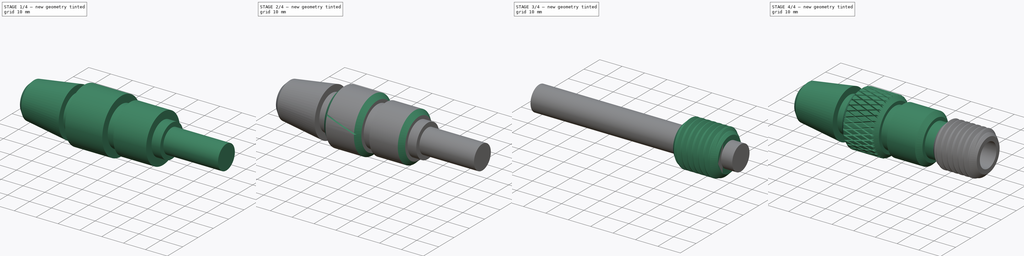
[diagram: build sequence overview — one tinted view per stage of 4, left to right]
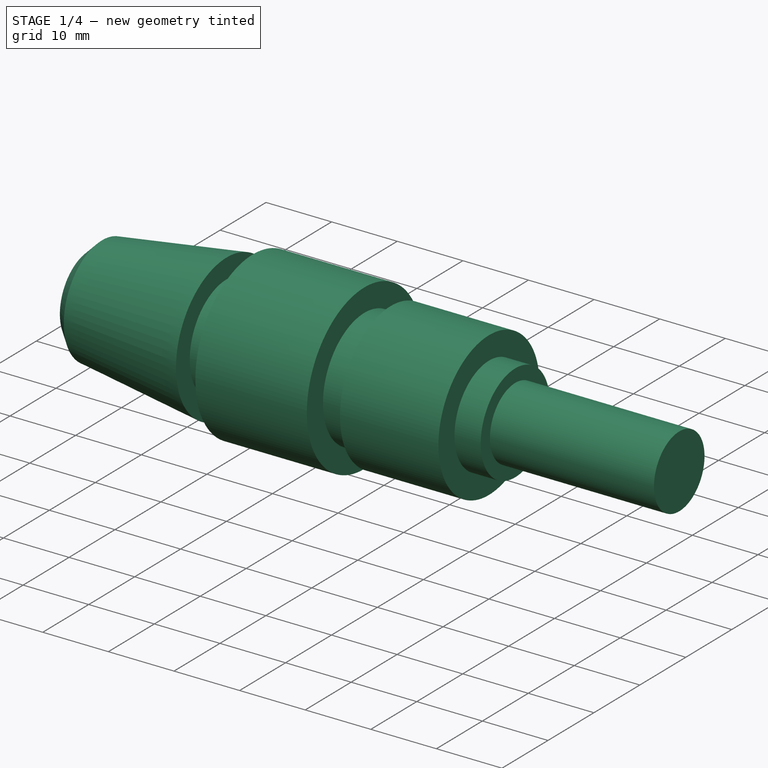
[diagram: stage 1 of 4 — iso view after this stage's code; geometry added in this stage tinted green]
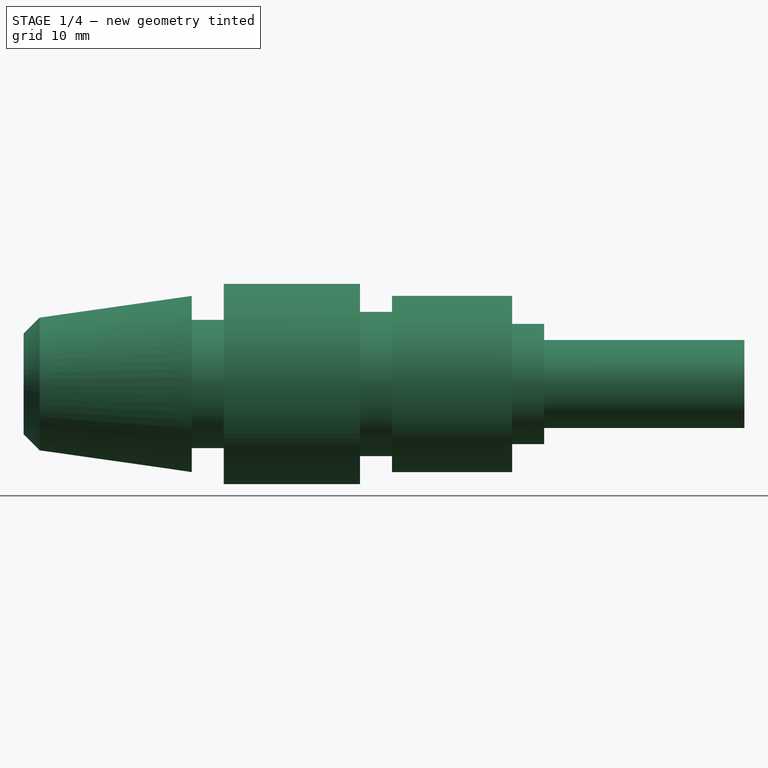
[diagram: stage 1 of 4 — front view after this stage's code; geometry added in this stage tinted green]
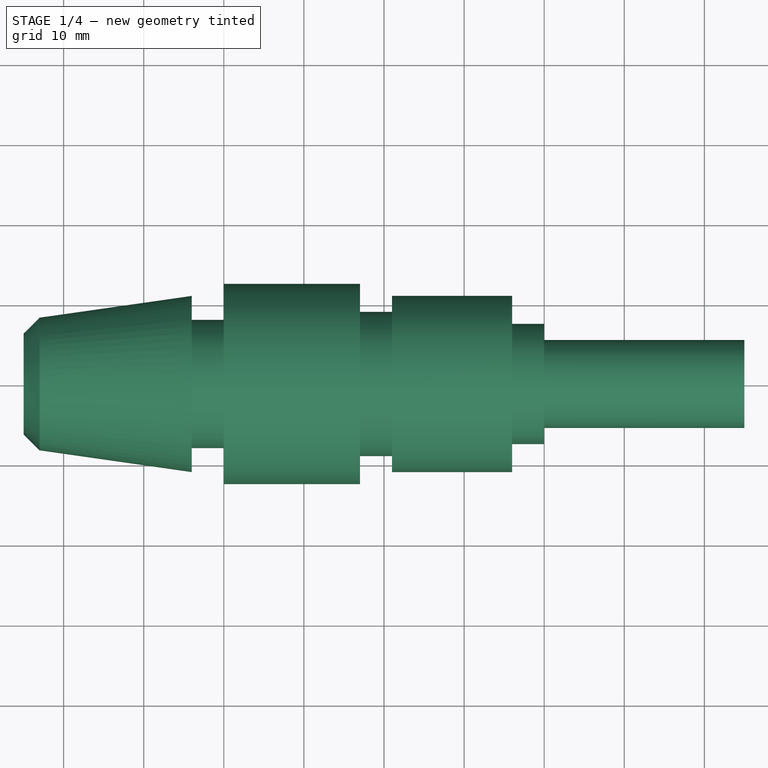
[diagram: stage 1 of 4 — top view after this stage's code; geometry added in this stage tinted green]
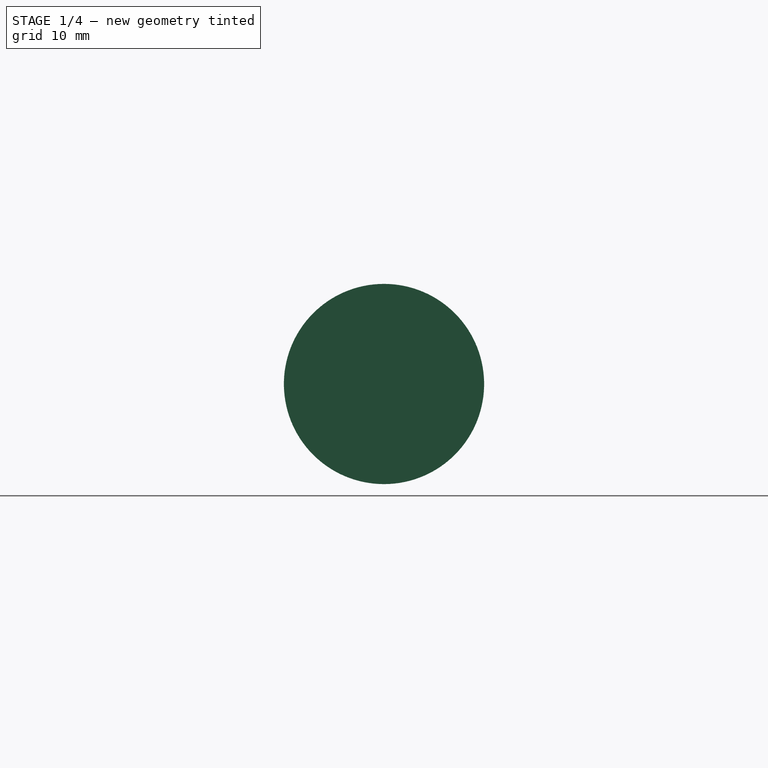
[diagram: stage 1 of 4 — right view after this stage's code; geometry added in this stage tinted green]
FCSTD DOCUMENT  (FreeCAD 1.0R39319 (Git))
Label: Unnamed
License: All rights reserved
LicenseURL: https://en.wikipedia.org/wiki/All_rights_reserved
objects: Sketcher::SketchObject×2, PartDesign::SubtractiveHelix×2, PartDesign::Revolution×1, PartDesign::Plane×1, PartDesign::Chamfer×1, PartDesign::PolarPattern×1, PartDesign::Body×1, Part::FeaturePython×1, Part::MultiFuse×1, Part::Cylinder×1, Part::Cut×1
note: 24 computed .brp shape members not serialized (recipe doc carries the construction recipe); baked Part::Feature solids carry a one-line shape summary decoded from their .brp

FEATURE [Sketcher::SketchObject] Sketch
  ArcFitTolerance = 1e-06
  AttachmentSupport = -> [XZ_Plane]
  FullyConstrained = true
  MakeInternals = false
  MapMode = 5
  Placement = pos=(0,0,0) rot=(1,0,0;1.5708rad)
  sketch-geometry (15):
    g0: LineSegment StartX=-65 StartY=0 StartZ=0 EndX=-65 EndY=6.285 EndZ=0
    g1: LineSegment StartX=-65 StartY=6.285 StartZ=0 EndX=-63 EndY=8.285 EndZ=0
    g2: LineSegment StartX=-63 StartY=8.285 StartZ=0 EndX=-44 EndY=11 EndZ=0
    g3: LineSegment StartX=-44 StartY=8 StartZ=0 EndX=-40 EndY=8 EndZ=0
    g4: LineSegment StartX=-40 StartY=8 StartZ=0 EndX=-40 EndY=12.5 EndZ=0
    g5: LineSegment StartX=-40 StartY=12.5 StartZ=0 EndX=-23 EndY=12.5 EndZ=0
    g6: LineSegment StartX=-23 StartY=12.5 StartZ=0 EndX=-23 EndY=9 EndZ=0
    g7: LineSegment StartX=-23 StartY=9 StartZ=0 EndX=-19 EndY=9 EndZ=0
    g8: LineSegment StartX=-19 StartY=9 StartZ=0 EndX=-19 EndY=11 EndZ=0
    g9: LineSegment StartX=-19 StartY=11 StartZ=0 EndX=-4 EndY=11 EndZ=0
    g10: LineSegment StartX=-4 StartY=11 StartZ=0 EndX=-4 EndY=7.5 EndZ=0
    g11: LineSegment StartX=0 StartY=0 StartZ=0 EndX=-65 EndY=0 EndZ=0
    g12: LineSegment StartX=-44 StartY=11 StartZ=0 EndX=-44 EndY=8 EndZ=0
    g13: LineSegment StartX=-4 StartY=7.5 StartZ=0 EndX=0 EndY=7.5 EndZ=0
    g14: LineSegment StartX=0 StartY=0 StartZ=0 EndX=0 EndY=7.5 EndZ=0
  constraints (44):
    c: Vertical(g0)
    c: Coincident(g0,g1)
    c: Coincident(g1,g2)
    c: Horizontal(g3)
    c: Coincident(g3,g4)
    c: Coincident(g4,g5)
    c: Horizontal(g5)
    c: Coincident(g5,g6)
    c: Coincident(g6,g7)
    c: Coincident(g7,g8)
    c: Coincident(g8,g9)
    c: Horizontal(g9)
    c: Coincident(g9,g10)
    c: Coincident(g0,g11)
    c: DistanceX(g0,g1) = 2
    c: Angle(g1,g0) = 0.785398
    c: Vertical(g4)
    c: Vertical(g6)
    c: Vertical(g8)
    c: Horizontal(g7)
    c: Vertical(g10)
    c: DistanceX(g3,g3) = 4
    c: DistanceX(g5,g5) = 17
    c: Distance(g11,g5) = 12.5
    c: DistanceX(g7,g7) = 4
    c: DistanceX(g9,g9) = 15
    c: PointOnObject(g0,g-1)
    c: Coincident(g12,g2)
    c: Vertical(g12)
    c: Coincident(g3,g12)
    c: DistanceY(g-1,g2) = 11
    c: Distance(g0,g12) = 21
    c: Distance(g11,g3) = 8
    c: Distance(g11,g7) = 9
    c: Distance(g11,g9) = 11
    c: Distance(g13) = 4
    c: Horizontal(g13)
    c: Coincident(g13,g10)
    c: Coincident(g11,g-1)
    c: Vertical(g14)
    c: Coincident(g14,g13)
    c: Coincident(g14,g11)
    c: DistanceY(g-1,g1) = 8.285
    c: Distance(g11,g13) = 7.5
FEATURE [PartDesign::Revolution] Revolution
  Angle = 360
  Angle2 = 60
  Axis = (1,0,0)
  Base = (0,0,0)
  Placement = pos=(0,0,0) rot=(1,0,0;1.5708rad)
  Profile = -> Sketch
  ReferenceAxis = -> X_Axis
  Refine = true
  Suppressed = false
  Type = 0
FEATURE [Part::Cylinder] Cylinder
  Angle = 360
  AttacherType = Attacher::AttachEngine3D
  AttachmentSupport = -> [Fusion]
  FirstAngle = 0
  Height = 90
  MapMode = 5
  Placement = pos=(-65,0,0) rot=(0.57735,0.57735,0.57735;2.0944rad)
  Radius = 5.5
  SecondAngle = 0
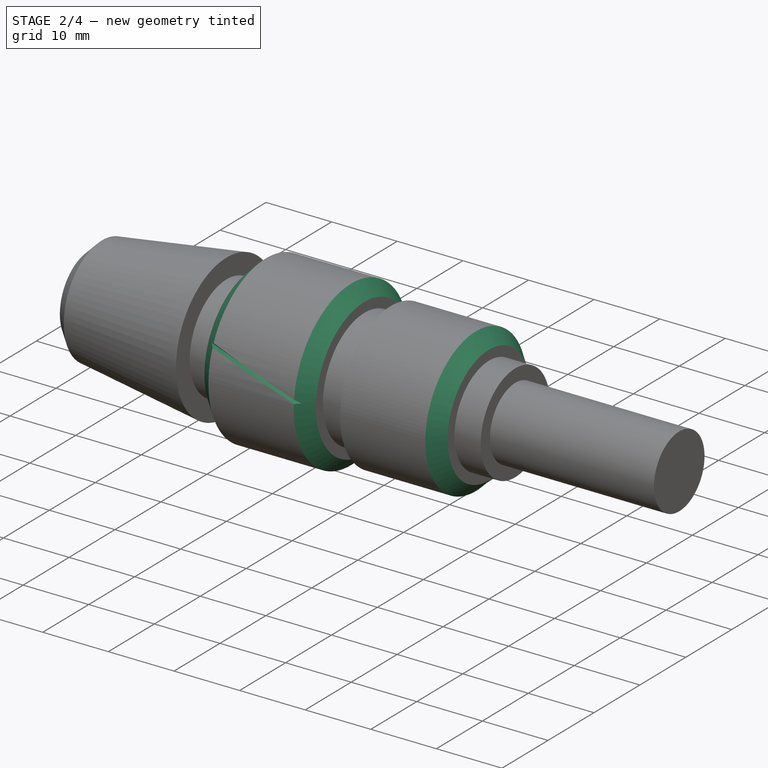
[diagram: stage 2 of 4 — iso view after this stage's code; geometry added in this stage tinted green]
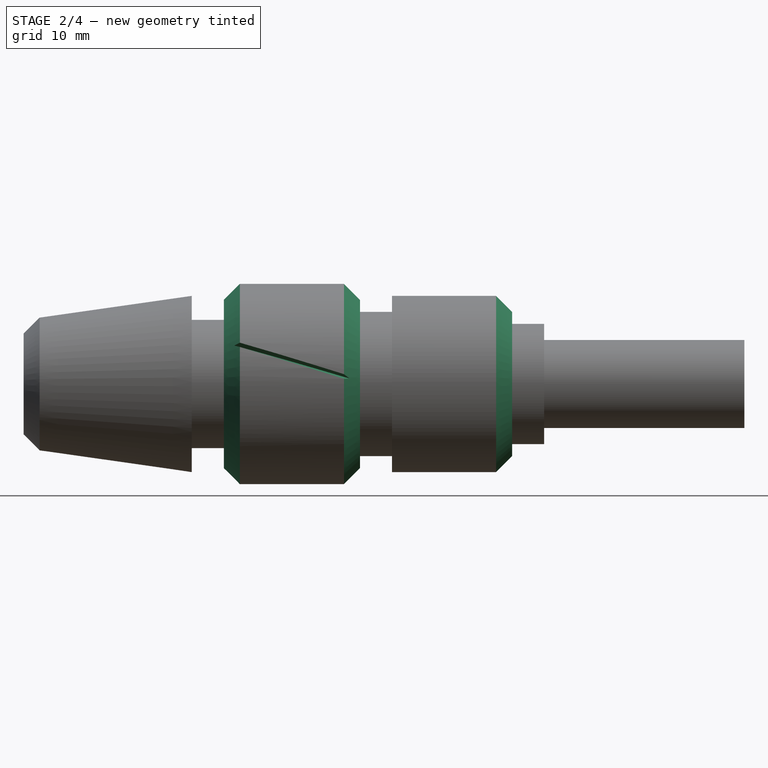
[diagram: stage 2 of 4 — front view after this stage's code; geometry added in this stage tinted green]
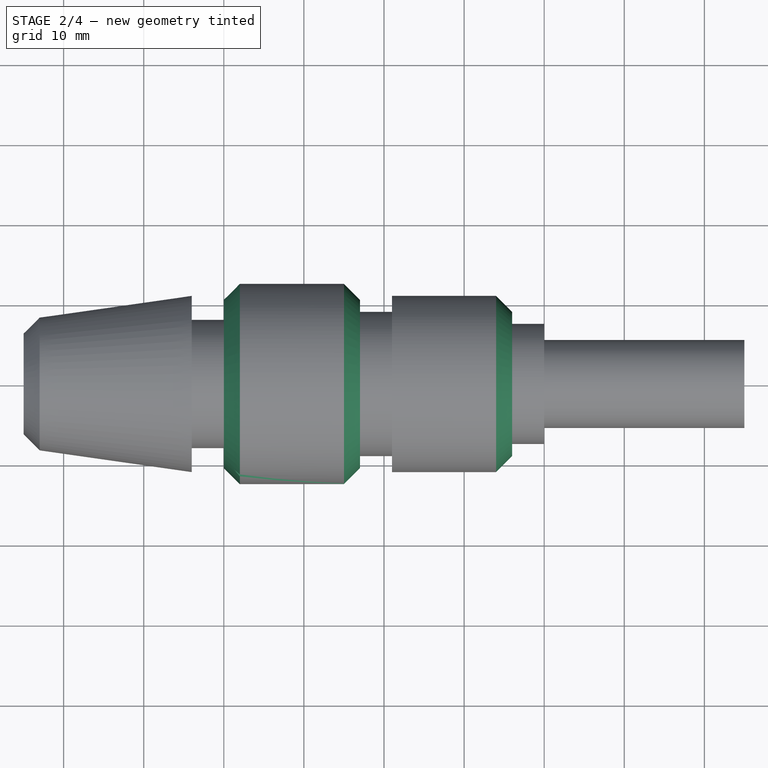
[diagram: stage 2 of 4 — top view after this stage's code; geometry added in this stage tinted green]
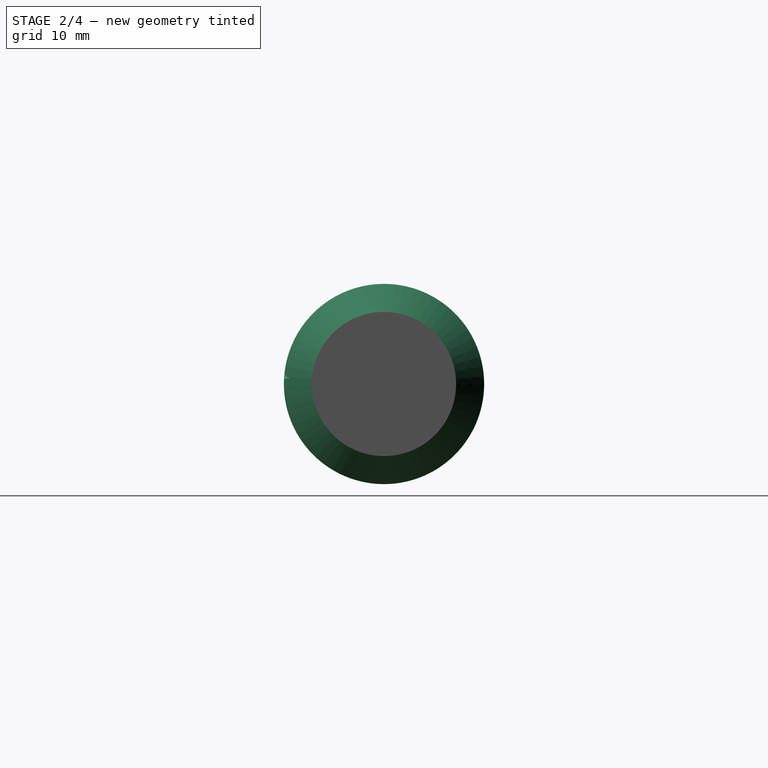
[diagram: stage 2 of 4 — right view after this stage's code; geometry added in this stage tinted green]
FEATURE [PartDesign::Plane] DatumPlane
  AttachmentSupport = -> [Revolution]
  Length = 60
  MapMode = 5
  Placement = pos=(0,0,0) rot=(0.707107,0,0.707107;3.14159rad)
  ResizeMode = 0
  Width = 60
FEATURE [Sketcher::SketchObject] Sketch001
  ArcFitTolerance = 1e-06
  AttachmentOffset = pos=(0,0,-22) rot=(0,0,1;0rad)
  AttachmentSupport = -> [Revolution]
  FullyConstrained = false
  MakeInternals = false
  MapMode = 5
  Placement = pos=(-22,0,4.9e-15) rot=(0.707107,0,0.707107;3.14159rad)
  sketch-geometry (3):
    g0: LineSegment StartX=-0.828427 StartY=13.7951 StartZ=0 EndX=0 EndY=11.7951 EndZ=0
    g1: LineSegment StartX=0 StartY=11.7951 StartZ=0 EndX=0.828427 EndY=13.7951 EndZ=0
    g2: ArcOfCircle CenterX=-1.26e-14 CenterY=0 CenterZ=0 NormalX=0 NormalY=0 NormalZ=1 AngleXU=0 Radius=13.82 StartAngle=1.51082 EndAngle=1.63078
  constraints (8):
    c: Coincident(g0,g1)
    c: Symmetric(g0,g1,g-2)
    c: Angle(g1,g0) = 0.785398
    c: Coincident(g2,g0)
    c: Coincident(g2,g1)
    c: Radius(g2) = 13.82
    c: DistanceY(g0,g1) = 2
    c: Coincident(g2,g-1)
FEATURE [PartDesign::Chamfer] Chamfer
  Angle = 45
  Base = -> Revolution [Edge16,Edge10,Edge9]
  BaseFeature = -> Revolution
  ChamferType = 0
  FlipDirection = false
  Placement = pos=(0,0,0) rot=(1,0,0;1.5708rad)
  Refine = true
  Size = 2
  Size2 = 1
  SupportTransform = false
  Suppressed = false
  UseAllEdges = false
FEATURE [PartDesign::SubtractiveHelix] SubtractiveHelix
  Angle = 0
  Axis = (1,0,0)
  Base = (0,0,0)
  BaseFeature = -> Chamfer
  Growth = 0
  HasBeenEdited = true
  Height = 20
  LeftHanded = false
  Mode = 0
  Outside = false
  Pitch = 250
  Placement = pos=(0,0,0) rot=(1,0,0;1.5708rad)
  Profile = -> Sketch001
  ReferenceAxis = -> X_Axis
  Refine = true
  Reversed = true
  Suppressed = false
  Tolerance = 0.1
  Turns = 0.08
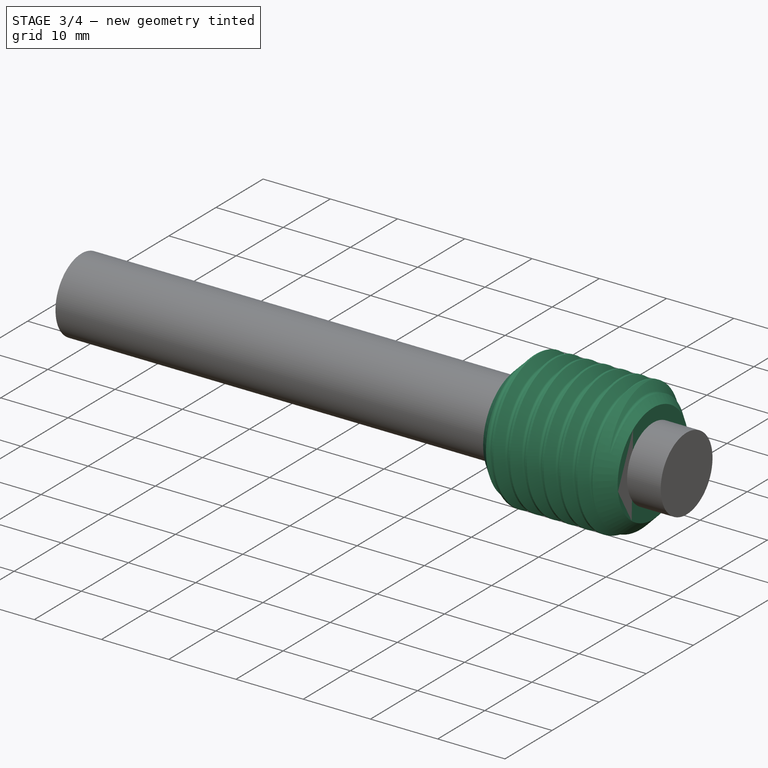
[diagram: stage 3 of 4 — iso view after this stage's code; geometry added in this stage tinted green]
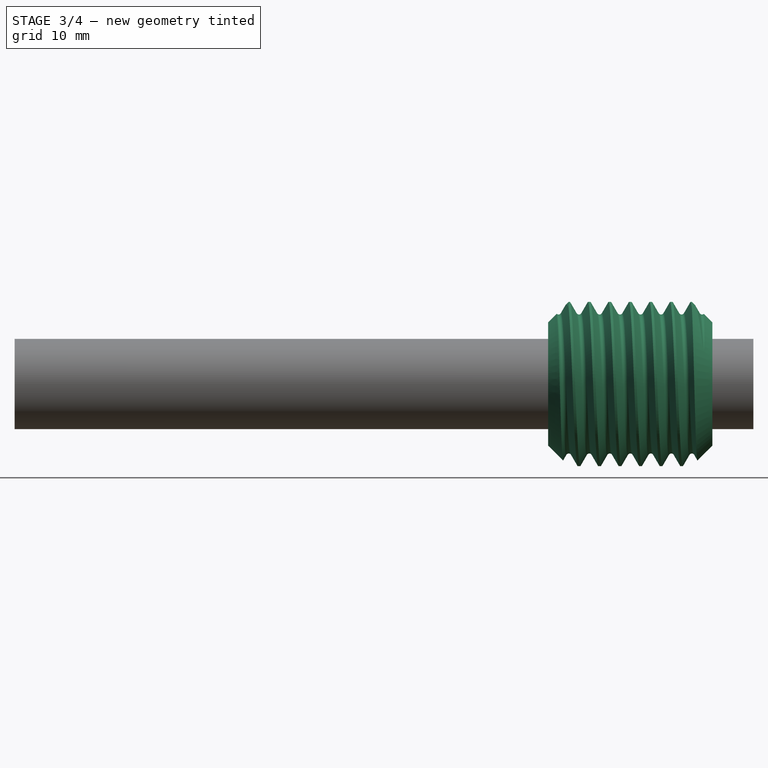
[diagram: stage 3 of 4 — front view after this stage's code; geometry added in this stage tinted green]
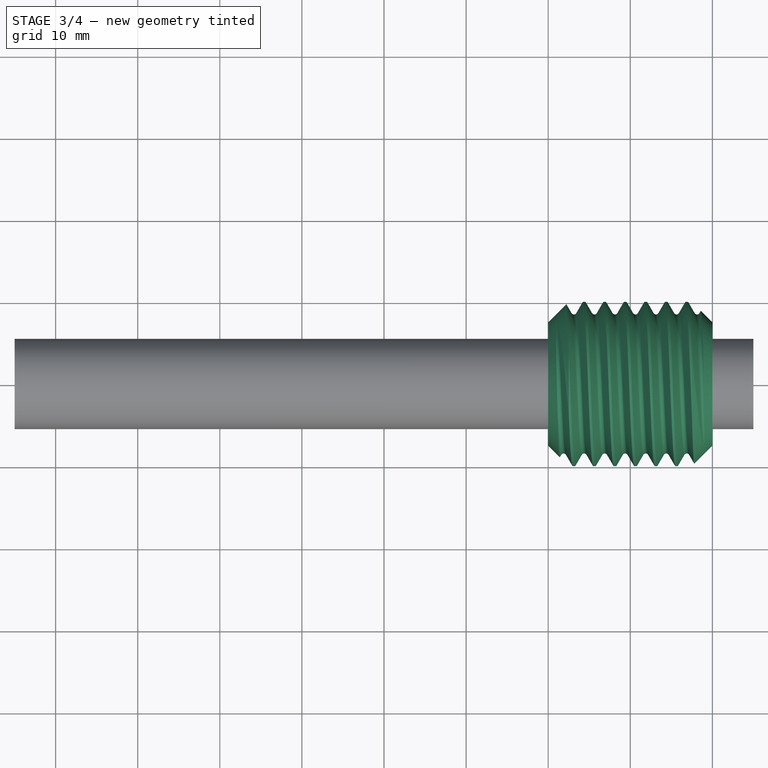
[diagram: stage 3 of 4 — top view after this stage's code; geometry added in this stage tinted green]
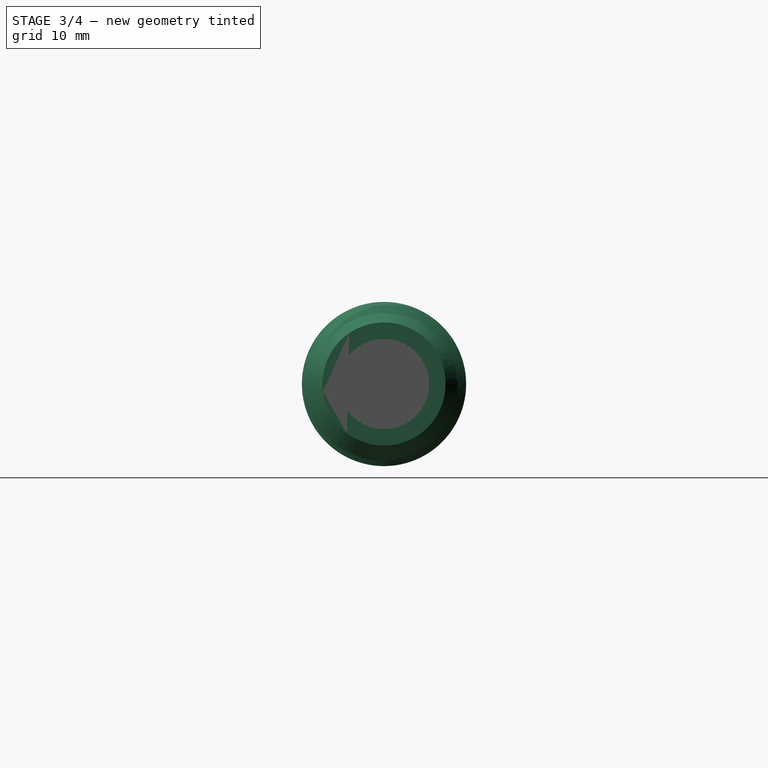
[diagram: stage 3 of 4 — right view after this stage's code; geometry added in this stage tinted green]
FEATURE [PartDesign::SubtractiveHelix] SubtractiveHelix001
  Angle = 0
  Axis = (1,0,0)
  Base = (0,0,0)
  BaseFeature = -> SubtractiveHelix
  Growth = 0
  HasBeenEdited = true
  Height = 20
  LeftHanded = true
  Mode = 0
  Outside = false
  Pitch = 250
  Placement = pos=(0,0,0) rot=(1,0,0;1.5708rad)
  Profile = -> Sketch001
  ReferenceAxis = -> X_Axis
  Refine = true
  Reversed = true
  Suppressed = false
  Tolerance = 0.1
  Turns = 0.08
FEATURE [PartDesign::PolarPattern] PolarPattern
  Angle = 360
  Axis = -> X_Axis
  BaseFeature = -> SubtractiveHelix001
  Mode = 0
  Occurrences = 32
  Offset = 120
  Originals = -> [SubtractiveHelix,SubtractiveHelix001]
  Placement = pos=(0,0,0) rot=(1,0,0;1.5708rad)
  Refine = true
  Suppressed = false
  TransformMode = 0
FEATURE [PartDesign::Body] Body
  AllowCompound = false
  Group = -> [Sketch,Revolution,DatumPlane,Sketch001,Chamfer,SubtractiveHelix,SubtractiveHelix001,PolarPattern]
  Origin = -> Origin
  Tip = -> PolarPattern
FEATURE [Part::FeaturePython] ThreadedRod  label="M20x20-ThreadedRod"  # WARN: FeaturePython — macro-defined, semantics opaque (R4)
  BaseObject = -> Body [PolarPattern.Edge1687]
  Diameter = 15
  DiameterCustom = 6
  Invert = true
  LeftHanded = false
  Length = 20
  MatchOuter = false
  OffsetAngle = 0
  PitchCustom = 1
  Placement = pos=(0,0,0) rot=(0,-1,0;1.5708rad)
  Thread = true
  Type = 4
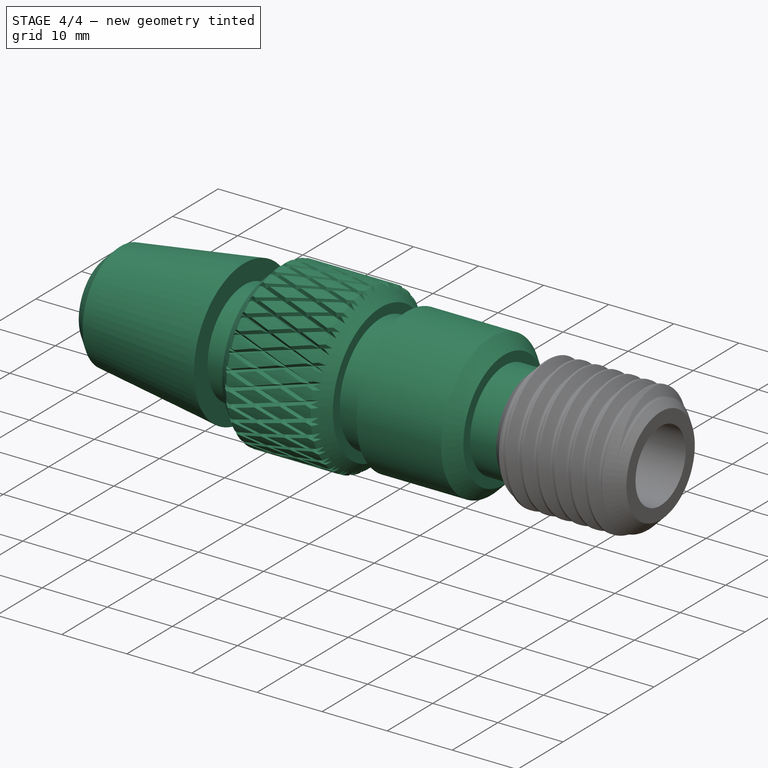
[diagram: stage 4 of 4 — iso view after this stage's code; geometry added in this stage tinted green]
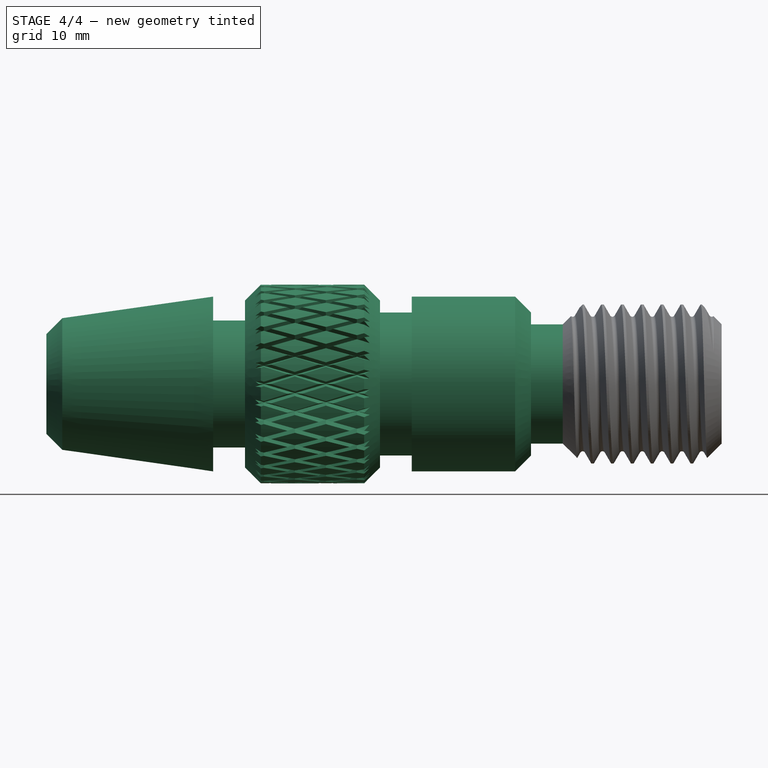
[diagram: stage 4 of 4 — front view after this stage's code; geometry added in this stage tinted green]
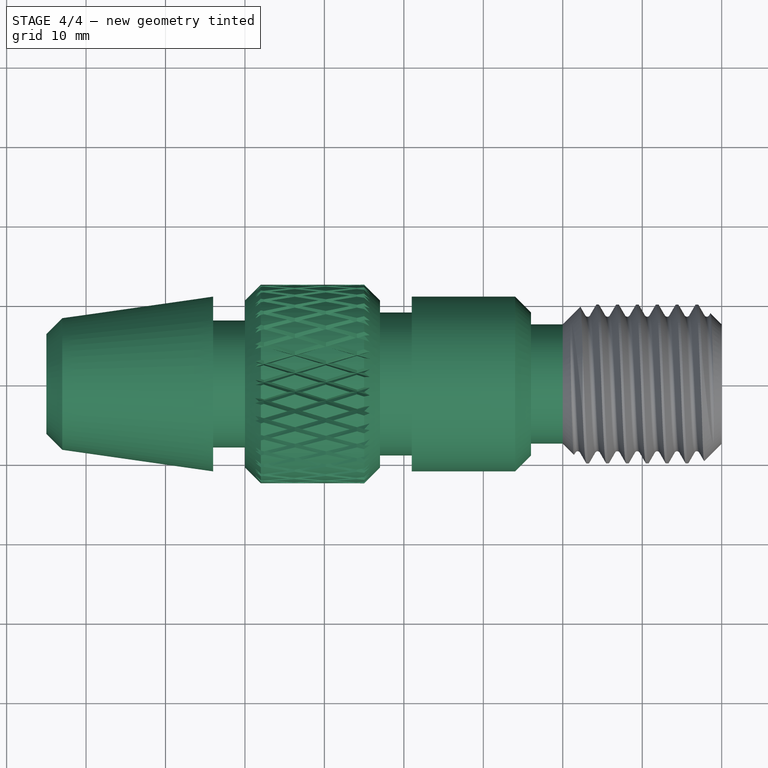
[diagram: stage 4 of 4 — top view after this stage's code; geometry added in this stage tinted green]
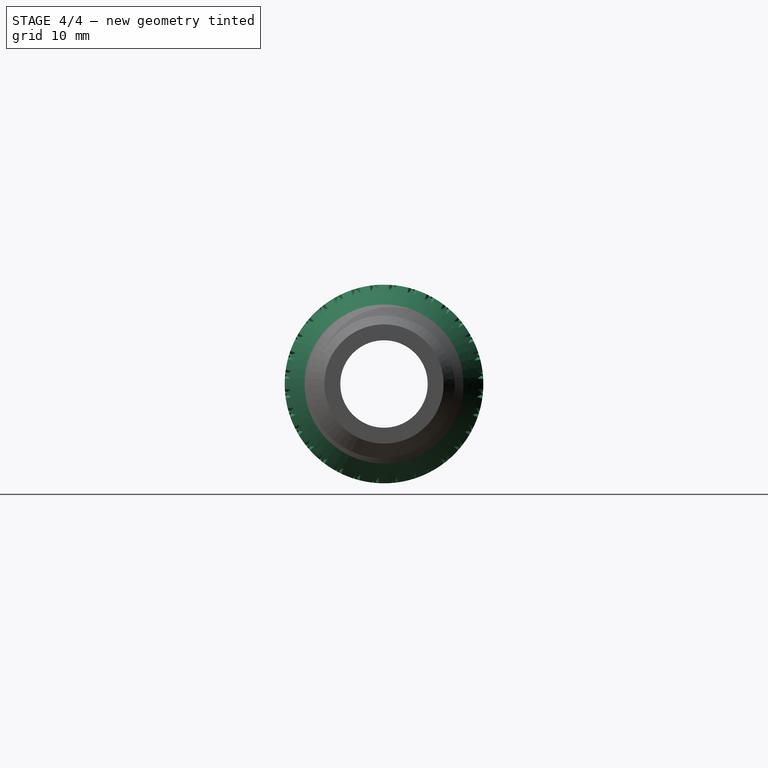
[diagram: stage 4 of 4 — right view after this stage's code; geometry added in this stage tinted green]
FEATURE [Part::MultiFuse] Fusion
  Refine = true
  Shapes = -> [Body,ThreadedRod]
FEATURE [Part::Cut] Cut
  Base = -> Fusion
  Refine = true
  Tool = -> Cylinder
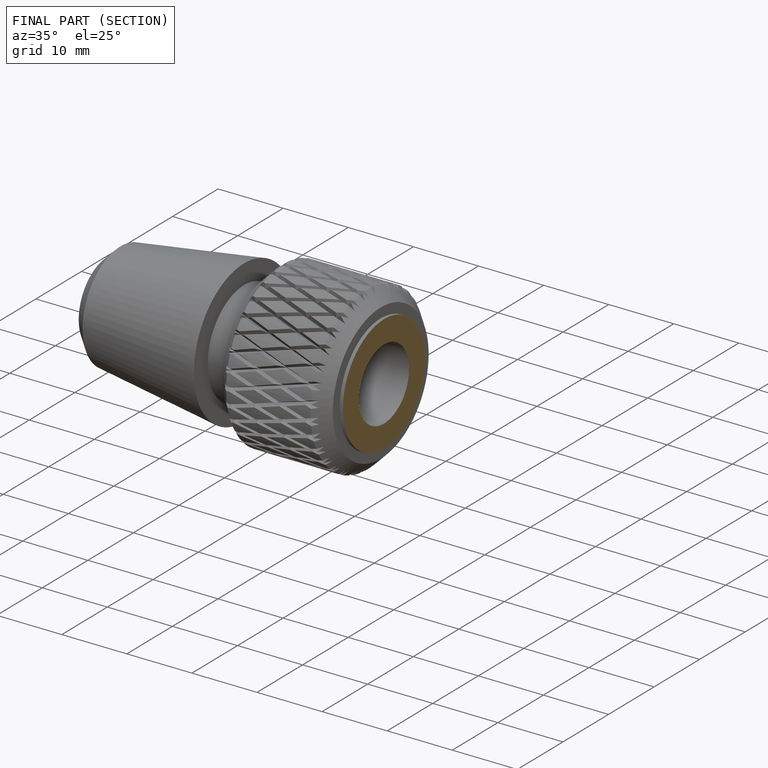
[diagram: finished part — half-section view (interior)]
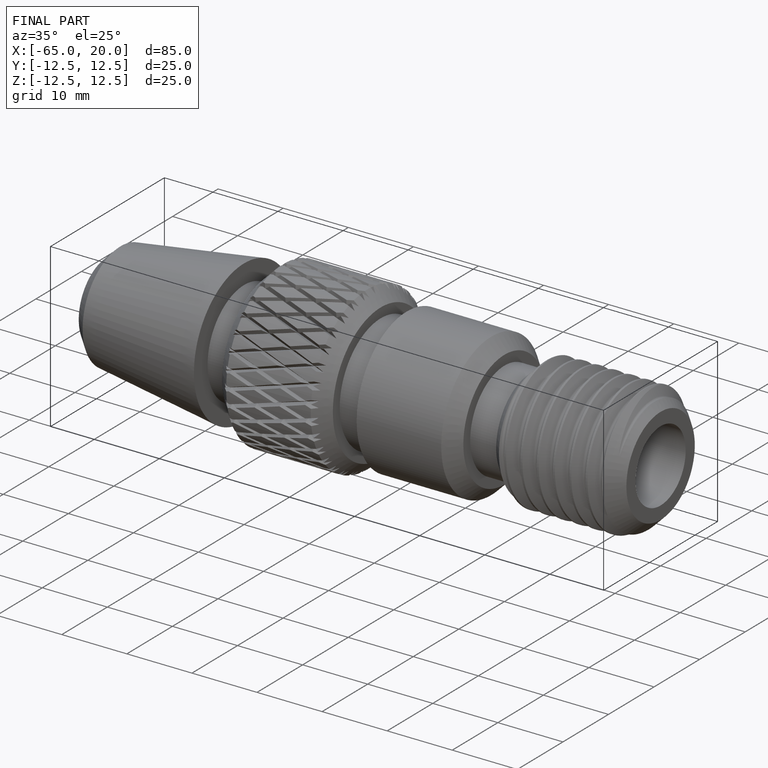
[diagram: finished part — iso view with bounding-box wireframe]
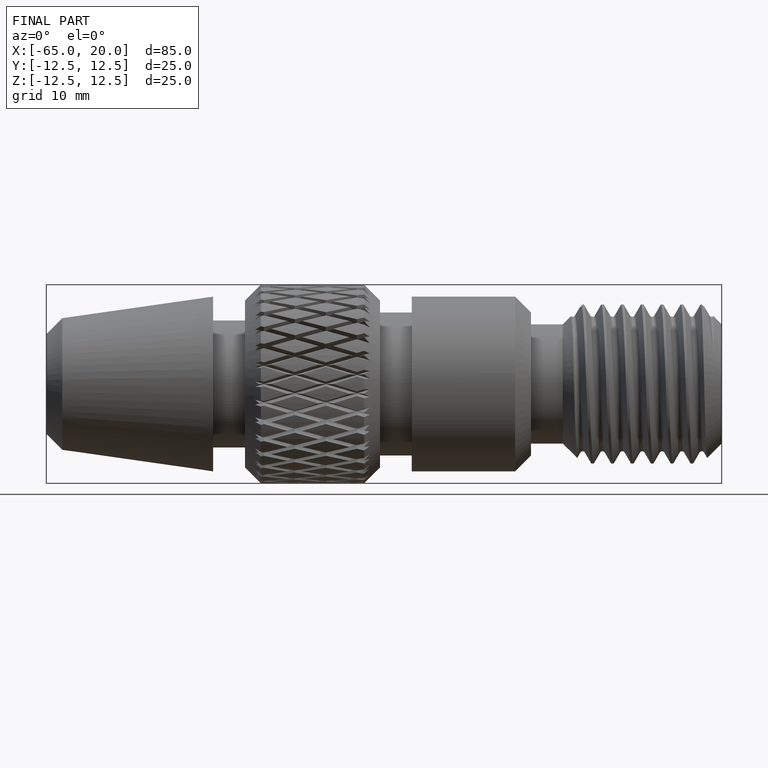
[diagram: finished part — front view with bounding-box wireframe]
